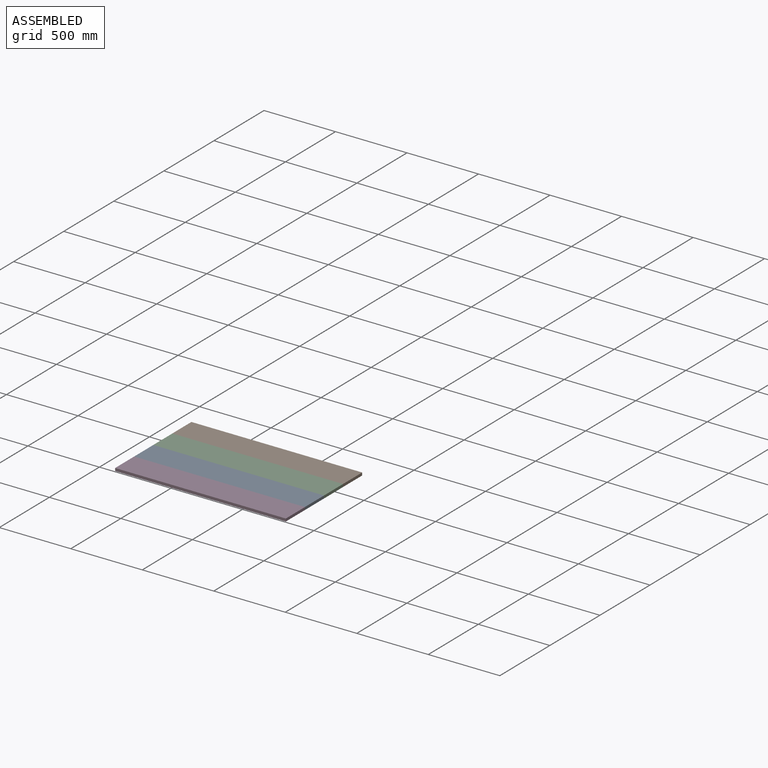
[diagram: assembled view]
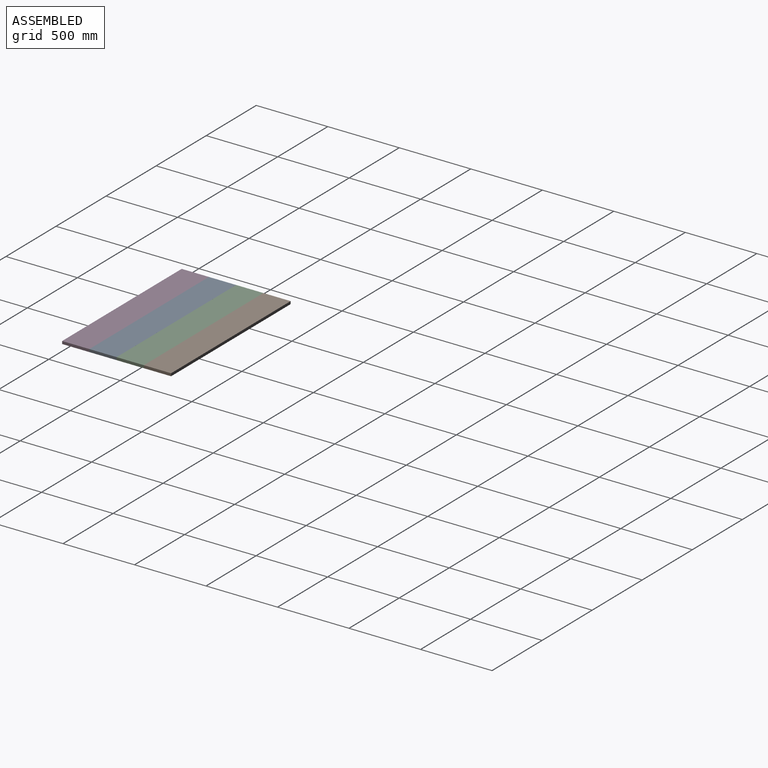
[diagram: assembled view, second angle]
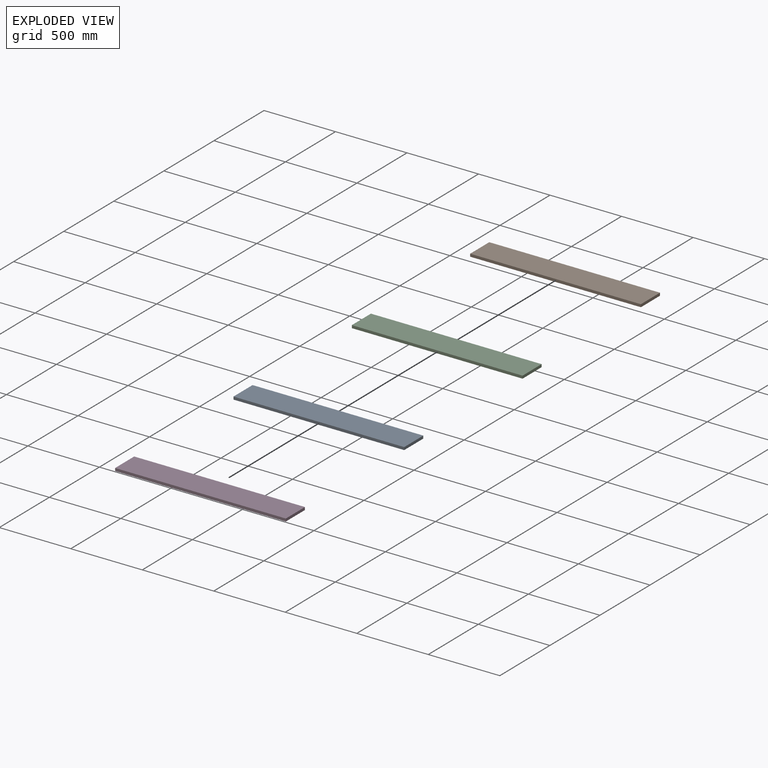
[diagram: exploded view]
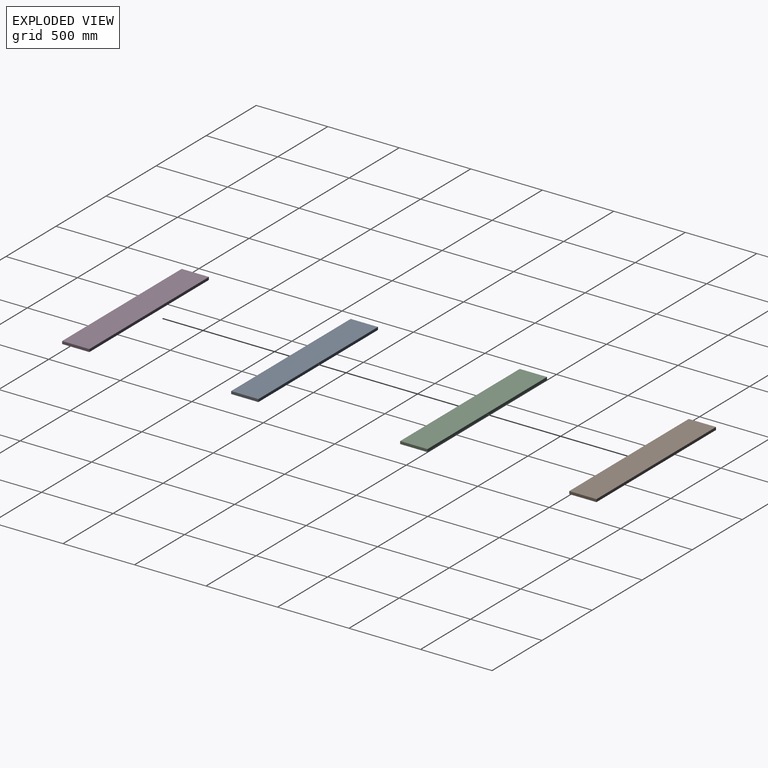
[diagram: exploded view, second angle]
ASSEMBLY  parts=4 mates=3
PART A: 6 faces, bbox 1193.8x190.5x19.1 mm
  f0: plane 1193.8x19.05mm, normal (0,1,0), area 22741.9mm2, adj f1,f3,f4,f5
  f1: plane 190.5x19.05mm, normal (-1,0,0), area 3629mm2, adj f0,f2,f4,f5
  f2: plane 1193.8x19.05mm, normal (0,-1,0), area 22741.9mm2, adj f1,f3,f4,f5
  f3: plane 190.5x19.05mm, normal (1,0,0), area 3629mm2, adj f0,f2,f4,f5
  f4: plane 1193.8x190.5mm, normal (0,0,1), area 227418.9mm2, adj f0,f1,f2,f3
  f5: plane 1193.8x190.5mm, normal (0,0,-1), area 227418.9mm2, adj f0,f1,f2,f3
PART B: same geometry as A
PART C: same geometry as A
PART D: same geometry as A
PLACE A t=(-272.53,-243.6,156.36)mm
PLACE B t=(-272.53,137.4,156.36)mm
PLACE C t=(-272.53,-53.1,156.36)mm
PLACE D t=(-272.53,-434.1,156.36)mm
MATE fastened A.f0 <-> C.f2  axis (0,1,0) through (-869.43,-148.35,165.89)mm
MATE fastened B.f2 <-> C.f0  axis (0,-1,0) through (-869.43,42.15,165.89)mm
MATE fastened A.f2 <-> D.f0  axis (0,-1,0) through (-869.43,-338.85,165.89)mm
